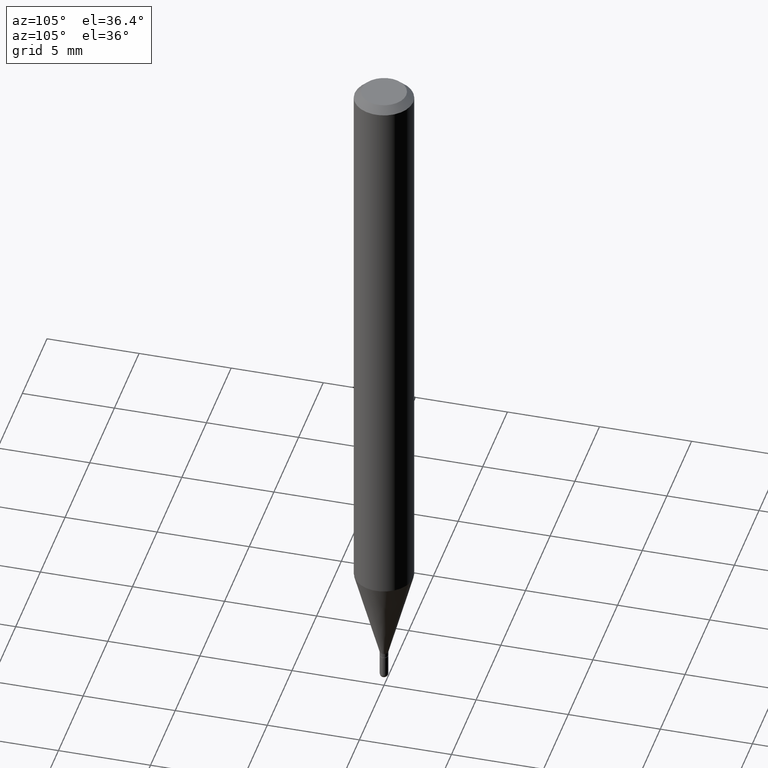
[diagram: clean part render]
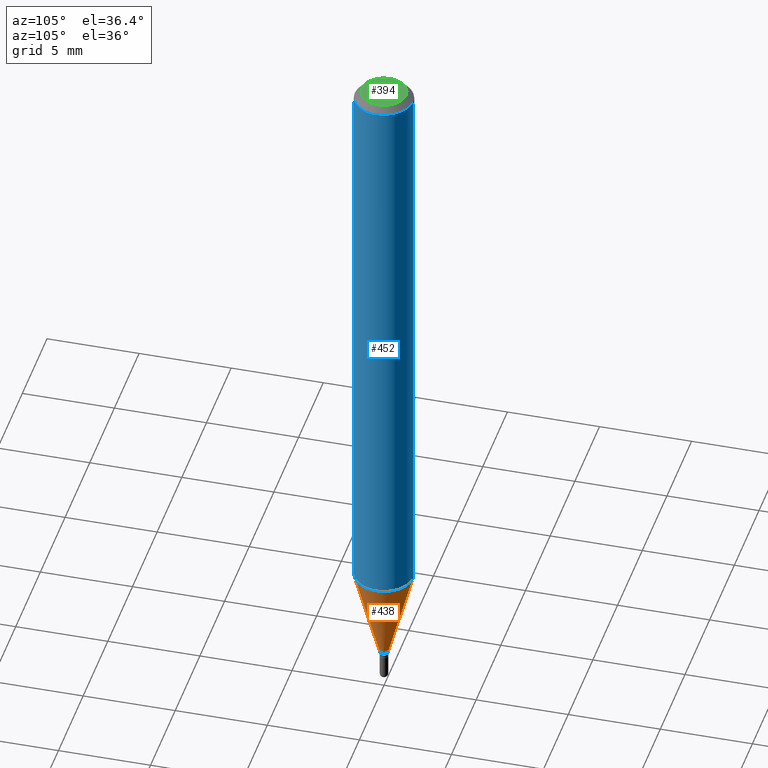
[diagram: same view with three faces highlighted in distinct colors, each labeled with its STEP entity id]
A machine part, auxiliary view with three faces highlighted in distinct colors.
Their STEP definitions:

[orange] entity #438 — the highlighted conical surface has half-angle 15 deg.
#11 = ORIENTED_EDGE ( 'NONE', *, *, #274, .T. ) ;
#31 = ORIENTED_EDGE ( 'NONE', *, *, #353, .T. ) ;
#41 = CIRCLE ( 'NONE', #81, 0.06250000000000000000 ) ;
#46 = DIRECTION ( 'NONE',  ( -2.445453937894507542E-29, 3.491502631081576772E-15, 1.000000000000000000 ) ) ;
#51 = AXIS2_PLACEMENT_3D ( 'NONE', #245, #167, #130 ) ;
#70 = CIRCLE ( 'NONE', #492, 0.008999999999999922992 ) ;
#81 = AXIS2_PLACEMENT_3D ( 'NONE', #200, #46, #403 ) ;
#82 = LINE ( 'NONE', #241, #119 ) ;
#86 = EDGE_LOOP ( 'NONE', ( #11, #31, #108, #503 ) ) ;
#92 = FACE_OUTER_BOUND ( 'NONE', #86, .T. ) ;
#96 = CONICAL_SURFACE ( 'NONE', #51, 0.008999999999999922992, 0.2617993877991502960 ) ;
#108 = ORIENTED_EDGE ( 'NONE', *, *, #406, .F. ) ;
#119 = VECTOR ( 'NONE', #477, 39.37007874015748143 ) ;
#125 = CARTESIAN_POINT ( 'NONE',  ( -6.284666409914073747E-17, -0.009000000000004936343, -1.436000000000000165 ) ) ;
#130 = DIRECTION ( 'NONE',  ( -6.982962677686265922E-15, -1.000000000000000000, 0.000000000000000000 ) ) ;
#167 = DIRECTION ( 'NONE',  ( -2.445453937894507542E-29, 3.491502631081576772E-15, 1.000000000000000000 ) ) ;
#171 = VERTEX_POINT ( 'NONE', #498 ) ;
#200 = CARTESIAN_POINT ( 'NONE',  ( 3.023400983423658885E-29, -4.316667889286455172E-15, -1.236335281795065688 ) ) ;
#203 = VERTEX_POINT ( 'NONE', #428 ) ;
#241 = CARTESIAN_POINT ( 'NONE',  ( 6.394884621844357387E-17, 0.008999999999994909641, -1.436000000000000165 ) ) ;
#245 = CARTESIAN_POINT ( 'NONE',  ( 3.511671854816513905E-29, -5.013797778233144791E-15, -1.436000000000000165 ) ) ;
#274 = EDGE_CURVE ( 'NONE', #450, #289, #70, .T. ) ;
#280 = DIRECTION ( 'NONE',  ( -1.807323732225330928E-15, -0.2588190451025182970, 0.9659258262890689783 ) ) ;
#289 = VERTEX_POINT ( 'NONE', #435 ) ;
#299 = VECTOR ( 'NONE', #280, 39.37007874015748143 ) ;
#314 = CARTESIAN_POINT ( 'NONE',  ( 3.511671854816513905E-29, -5.013797778233144791E-15, -1.436000000000000165 ) ) ;
#348 = LINE ( 'NONE', #125, #299 ) ;
#353 = EDGE_CURVE ( 'NONE', #289, #171, #82, .T. ) ;
#354 = EDGE_CURVE ( 'NONE', #450, #203, #348, .T. ) ;
#357 = DIRECTION ( 'NONE',  ( -6.982962677686265922E-15, -1.000000000000000000, 0.000000000000000000 ) ) ;
#396 = DIRECTION ( 'NONE',  ( -2.445453937894507542E-29, 3.491502631081576772E-15, 1.000000000000000000 ) ) ;
#403 = DIRECTION ( 'NONE',  ( -6.982962677686265922E-15, -1.000000000000000000, 4.370956789862821150E-15 ) ) ;
#406 = EDGE_CURVE ( 'NONE', #203, #171, #41, .T. ) ;
#428 = CARTESIAN_POINT ( 'NONE',  ( -4.364351673553614462E-16, -0.06250000000000431599, -1.236335281795065466 ) ) ;
#435 = CARTESIAN_POINT ( 'NONE',  ( 2.540190280342682868E-16, 0.008999999999994909641, -1.436000000000000165 ) ) ;
#438 = ADVANCED_FACE ( 'NONE', ( #92 ), #96, .T. ) ;
#450 = VERTEX_POINT ( 'NONE', #488 ) ;
#477 = DIRECTION ( 'NONE',  ( 1.839019923739601104E-15, 0.2588190451025250693, 0.9659258262890670910 ) ) ;
#488 = CARTESIAN_POINT ( 'NONE',  ( -6.284666409914073747E-17, -0.009000000000004936343, -1.436000000000000165 ) ) ;
#492 = AXIS2_PLACEMENT_3D ( 'NONE', #314, #396, #357 ) ;
#498 = CARTESIAN_POINT ( 'NONE',  ( 4.440892098500925929E-16, 0.06249999999999566319, -1.236335281795066132 ) ) ;
#503 = ORIENTED_EDGE ( 'NONE', *, *, #354, .F. ) ;

[blue] entity #452 — the highlighted cylindrical surface (edge-blend (fillet) strip) has radius 1.5875 mm, axis along (-0, 0, 1).
#9 = LINE ( 'NONE', #166, #460 ) ;
#36 = DIRECTION ( 'NONE',  ( -2.445453937894507542E-29, 3.491502631081576772E-15, 1.000000000000000000 ) ) ;
#41 = CIRCLE ( 'NONE', #81, 0.06250000000000000000 ) ;
#46 = DIRECTION ( 'NONE',  ( -2.445453937894507542E-29, 3.491502631081576772E-15, 1.000000000000000000 ) ) ;
#50 = DIRECTION ( 'NONE',  ( -6.982962677686265922E-15, -1.000000000000000000, 3.491502631081576772E-15 ) ) ;
#81 = AXIS2_PLACEMENT_3D ( 'NONE', #200, #46, #403 ) ;
#89 = EDGE_LOOP ( 'NONE', ( #448, #454, #411, #179 ) ) ;
#103 = VERTEX_POINT ( 'NONE', #336 ) ;
#105 = DIRECTION ( 'NONE',  ( -6.982962677686265922E-15, -1.000000000000000000, 3.483106191921935554E-15 ) ) ;
#127 = CIRCLE ( 'NONE', #355, 0.06250000000000000000 ) ;
#128 = CYLINDRICAL_SURFACE ( 'NONE', #320, 0.06250000000000000000 ) ;
#166 = CARTESIAN_POINT ( 'NONE',  ( 4.440892098500625669E-16, 0.06250000000000000000, -2.182189144425985483E-16 ) ) ;
#171 = VERTEX_POINT ( 'NONE', #498 ) ;
#179 = ORIENTED_EDGE ( 'NONE', *, *, #212, .F. ) ;
#200 = CARTESIAN_POINT ( 'NONE',  ( 3.023400983423658885E-29, -4.316667889286455172E-15, -1.236335281795065688 ) ) ;
#203 = VERTEX_POINT ( 'NONE', #428 ) ;
#212 = EDGE_CURVE ( 'NONE', #203, #103, #377, .T. ) ;
#228 = EDGE_CURVE ( 'NONE', #103, #465, #127, .T. ) ;
#267 = VECTOR ( 'NONE', #36, 39.37007874015748143 ) ;
#284 = DIRECTION ( 'NONE',  ( -2.445453937894507542E-29, 3.491502631081576772E-15, 1.000000000000000000 ) ) ;
#319 = FACE_OUTER_BOUND ( 'NONE', #89, .T. ) ;
#320 = AXIS2_PLACEMENT_3D ( 'NONE', #322, #284, #50 ) ;
#322 = CARTESIAN_POINT ( 'NONE',  ( 0.000000000000000000, 0.000000000000000000, 0.000000000000000000 ) ) ;
#336 = CARTESIAN_POINT ( 'NONE',  ( -4.364351673553912750E-16, -0.06250000000000005551, -0.01499999999999979128 ) ) ;
#355 = AXIS2_PLACEMENT_3D ( 'NONE', #459, #421, #105 ) ;
#370 = CARTESIAN_POINT ( 'NONE',  ( 4.440892098500929873E-16, 0.06249999999999995143, -0.01500000000000022669 ) ) ;
#377 = LINE ( 'NONE', #386, #267 ) ;
#386 = CARTESIAN_POINT ( 'NONE',  ( -4.364351673553916201E-16, -0.06250000000000000000, 2.182189144425985483E-16 ) ) ;
#403 = DIRECTION ( 'NONE',  ( -6.982962677686265922E-15, -1.000000000000000000, 4.370956789862821150E-15 ) ) ;
#406 = EDGE_CURVE ( 'NONE', #203, #171, #41, .T. ) ;
#407 = DIRECTION ( 'NONE',  ( -2.445453937894507542E-29, 3.491502631081576772E-15, 1.000000000000000000 ) ) ;
#411 = ORIENTED_EDGE ( 'NONE', *, *, #228, .F. ) ;
#421 = DIRECTION ( 'NONE',  ( -2.445453937894507542E-29, 3.491502631081576772E-15, 1.000000000000000000 ) ) ;
#428 = CARTESIAN_POINT ( 'NONE',  ( -4.364351673553614462E-16, -0.06250000000000431599, -1.236335281795065466 ) ) ;
#447 = EDGE_CURVE ( 'NONE', #171, #465, #9, .T. ) ;
#448 = ORIENTED_EDGE ( 'NONE', *, *, #406, .T. ) ;
#452 = ADVANCED_FACE ( 'NONE', ( #319 ), #128, .T. ) ;
#454 = ORIENTED_EDGE ( 'NONE', *, *, #447, .T. ) ;
#459 = CARTESIAN_POINT ( 'NONE',  ( 3.668180906841763485E-31, -5.237253946622367771E-17, -0.01500000000000000812 ) ) ;
#460 = VECTOR ( 'NONE', #407, 39.37007874015748143 ) ;
#465 = VERTEX_POINT ( 'NONE', #370 ) ;
#498 = CARTESIAN_POINT ( 'NONE',  ( 4.440892098500925929E-16, 0.06249999999999566319, -1.236335281795066132 ) ) ;

[green] entity #394 — the highlighted planar face has unit normal (0, -0, -1).
#17 = DIRECTION ( 'NONE',  ( 2.445453937894507262E-29, -3.491502631081576772E-15, -1.000000000000000000 ) ) ;
#27 = ORIENTED_EDGE ( 'NONE', *, *, #279, .T. ) ;
#49 = FACE_OUTER_BOUND ( 'NONE', #416, .T. ) ;
#71 = EDGE_CURVE ( 'NONE', #332, #242, #178, .T. ) ;
#80 = AXIS2_PLACEMENT_3D ( 'NONE', #439, #17, #481 ) ;
#117 = DIRECTION ( 'NONE',  ( -6.982962677686266711E-15, -1.000000000000000000, 3.491502631081576772E-15 ) ) ;
#178 = CIRCLE ( 'NONE', #290, 0.04749999999999999362 ) ;
#184 = ORIENTED_EDGE ( 'NONE', *, *, #71, .T. ) ;
#235 = CIRCLE ( 'NONE', #418, 0.04749999999999999362 ) ;
#239 = CARTESIAN_POINT ( 'NONE',  ( -3.773273898774340269E-16, -0.04749999999999999362, 1.569870667658692521E-16 ) ) ;
#242 = VERTEX_POINT ( 'NONE', #309 ) ;
#243 = PLANE ( 'NONE',  #80 ) ;
#275 = DIRECTION ( 'NONE',  ( -2.445453937894507542E-29, 3.491502631081576772E-15, 1.000000000000000000 ) ) ;
#278 = CARTESIAN_POINT ( 'NONE',  ( 2.166503015040211026E-46, -3.093229792654298365E-32, -8.859308210505618437E-18 ) ) ;
#279 = EDGE_CURVE ( 'NONE', #242, #332, #235, .T. ) ;
#290 = AXIS2_PLACEMENT_3D ( 'NONE', #505, #382, #338 ) ;
#309 = CARTESIAN_POINT ( 'NONE',  ( 3.840629472727447874E-16, 0.04749999999999999362, -1.747056831868805136E-16 ) ) ;
#332 = VERTEX_POINT ( 'NONE', #239 ) ;
#338 = DIRECTION ( 'NONE',  ( -6.982962677686266711E-15, -1.000000000000000000, 3.491502631081576772E-15 ) ) ;
#382 = DIRECTION ( 'NONE',  ( -2.445453937894507542E-29, 3.491502631081576772E-15, 1.000000000000000000 ) ) ;
#394 = ADVANCED_FACE ( 'NONE', ( #49 ), #243, .F. ) ;
#416 = EDGE_LOOP ( 'NONE', ( #27, #184 ) ) ;
#418 = AXIS2_PLACEMENT_3D ( 'NONE', #278, #275, #117 ) ;
#439 = CARTESIAN_POINT ( 'NONE',  ( 3.316907271900976096E-16, 0.04749999999999999362, -1.702760290816277106E-16 ) ) ;
#481 = DIRECTION ( 'NONE',  ( 6.982962677686265922E-15, 1.000000000000000000, -3.491502631081576772E-15 ) ) ;
#505 = CARTESIAN_POINT ( 'NONE',  ( 2.166503015040211026E-46, -3.093229792654298365E-32, -8.859308210505618437E-18 ) ) ;